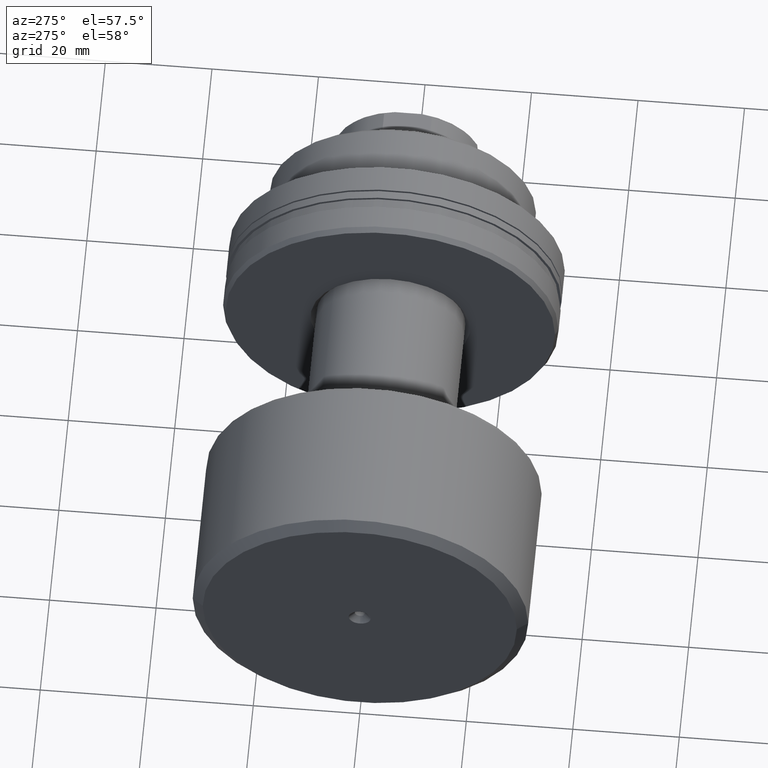
[diagram: clean part render]
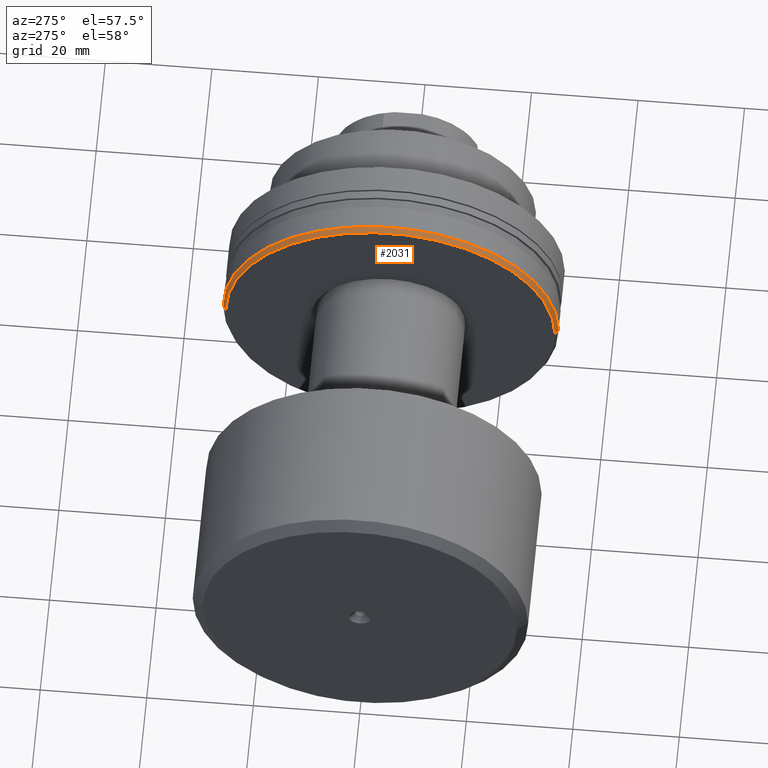
[diagram: same view with one face highlighted and labeled with its STEP entity id]
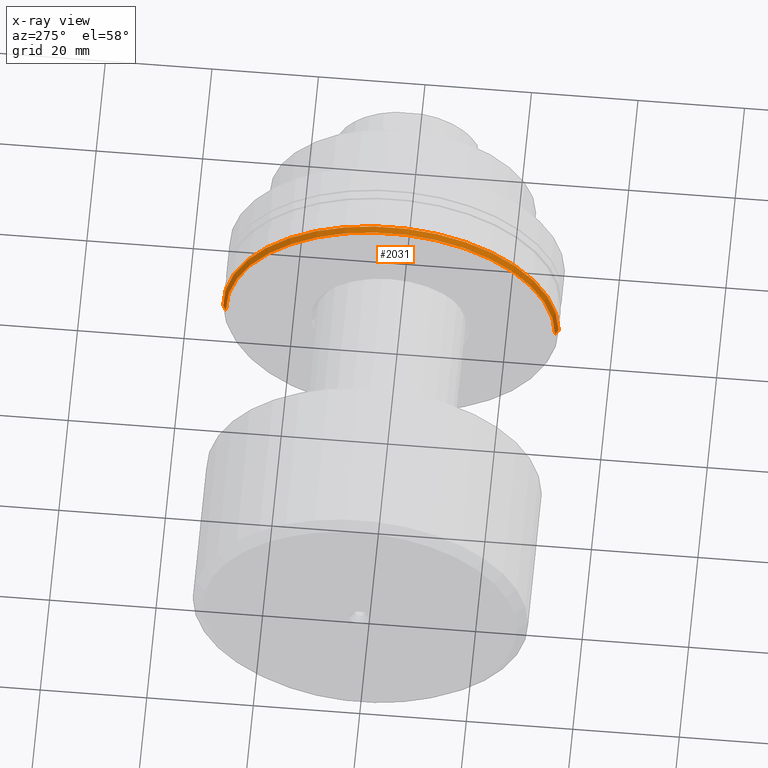
[diagram: x-ray of the same camera — body ghosted, the highlighted face saturated]
A machine part, auxiliary view. The second image highlights one B-rep face of the part: STEP entity #2031.
The next image is the same camera in x-ray: the body ghosted, the highlighted face saturated — about 0% of this face is hidden behind the body in this view.
In plain terms, the highlighted conical surface has half-angle 30 deg.
Its self-contained STEP definition (entity closure, byte-faithful):
#115 = CARTESIAN_POINT ( 'NONE',  ( -31.20000000000030482, 31.50000000000000711, 0.000000000000000000 ) ) ;
#156 = ORIENTED_EDGE ( 'NONE', *, *, #337, .T. ) ;
#262 = CARTESIAN_POINT ( 'NONE',  ( -32.20000000000005258, -3.708233295962754354E-15, 0.000000000000000000 ) ) ;
#268 = EDGE_LOOP ( 'NONE', ( #156, #1252, #1167, #535 ) ) ;
#310 = VERTEX_POINT ( 'NONE', #2205 ) ;
#337 = EDGE_CURVE ( 'NONE', #1912, #310, #828, .T. ) ;
#338 = CONICAL_SURFACE ( 'NONE', #685, 30.92264973081047330, 0.5235987755983044778 ) ;
#384 = DIRECTION ( 'NONE',  ( 0.8660254037844348218, 0.5000000000000065503, 0.000000000000000000 ) ) ;
#535 = ORIENTED_EDGE ( 'NONE', *, *, #1232, .F. ) ;
#609 = CARTESIAN_POINT ( 'NONE',  ( -31.20000000000018048, -31.49999999999999289, 3.857637417314162689E-15 ) ) ;
#614 = EDGE_CURVE ( 'NONE', #1930, #1982, #1415, .T. ) ;
#636 = DIRECTION ( 'NONE',  ( 1.000000000000000000, 1.931394410353556421E-15, -0.000000000000000000 ) ) ;
#685 = AXIS2_PLACEMENT_3D ( 'NONE', #931, #1373, #1580 ) ;
#828 = CIRCLE ( 'NONE', #1100, 30.92264973081047330 ) ;
#931 = CARTESIAN_POINT ( 'NONE',  ( -32.20000000000005258, -3.708233295962754354E-15, 0.000000000000000000 ) ) ;
#1094 = EDGE_CURVE ( 'NONE', #310, #1982, #1935, .T. ) ;
#1100 = AXIS2_PLACEMENT_3D ( 'NONE', #262, #636, #1882 ) ;
#1158 = DIRECTION ( 'NONE',  ( -1.982541115402065307E-15, 1.000000000000000000, 0.000000000000000000 ) ) ;
#1167 = ORIENTED_EDGE ( 'NONE', *, *, #614, .F. ) ;
#1170 = CARTESIAN_POINT ( 'NONE',  ( -31.20000000000024087, -1.776838885609560808E-15, 0.000000000000000000 ) ) ;
#1211 = CARTESIAN_POINT ( 'NONE',  ( -32.20000000000011653, 30.92264973081046975, 0.000000000000000000 ) ) ;
#1232 = EDGE_CURVE ( 'NONE', #1912, #1930, #1831, .T. ) ;
#1252 = ORIENTED_EDGE ( 'NONE', *, *, #1094, .T. ) ;
#1334 = AXIS2_PLACEMENT_3D ( 'NONE', #1170, #1680, #1158 ) ;
#1373 = DIRECTION ( 'NONE',  ( 1.000000000000000000, 1.931394410353556421E-15, -0.000000000000000000 ) ) ;
#1415 = CIRCLE ( 'NONE', #1334, 31.50000000000000000 ) ;
#1517 = CARTESIAN_POINT ( 'NONE',  ( -32.19999999999999574, -30.92264973081047685, 3.786932401399181040E-15 ) ) ;
#1580 = DIRECTION ( 'NONE',  ( -2.019556722299304144E-15, 1.000000000000000000, 0.000000000000000000 ) ) ;
#1581 = VECTOR ( 'NONE', #384, 1000.000000000000227 ) ;
#1663 = VECTOR ( 'NONE', #2238, 1000.000000000000000 ) ;
#1680 = DIRECTION ( 'NONE',  ( 1.000000000000000000, 1.931394410353556421E-15, -0.000000000000000000 ) ) ;
#1788 = CARTESIAN_POINT ( 'NONE',  ( -32.20000000000011653, 30.92264973081046975, 0.000000000000000000 ) ) ;
#1801 = FACE_OUTER_BOUND ( 'NONE', #268, .T. ) ;
#1831 = LINE ( 'NONE', #1788, #1581 ) ;
#1882 = DIRECTION ( 'NONE',  ( -2.019556722299304144E-15, 1.000000000000000000, 0.000000000000000000 ) ) ;
#1912 = VERTEX_POINT ( 'NONE', #1211 ) ;
#1930 = VERTEX_POINT ( 'NONE', #115 ) ;
#1935 = LINE ( 'NONE', #1517, #1663 ) ;
#1982 = VERTEX_POINT ( 'NONE', #609 ) ;
#2031 = ADVANCED_FACE ( 'NONE', ( #1801 ), #338, .T. ) ;
#2205 = CARTESIAN_POINT ( 'NONE',  ( -32.19999999999999574, -30.92264973081047685, 3.822284909356672259E-15 ) ) ;
#2238 = DIRECTION ( 'NONE',  ( 0.8660254037844368202, -0.5000000000000032196, 6.123233995736826433E-17 ) ) ;